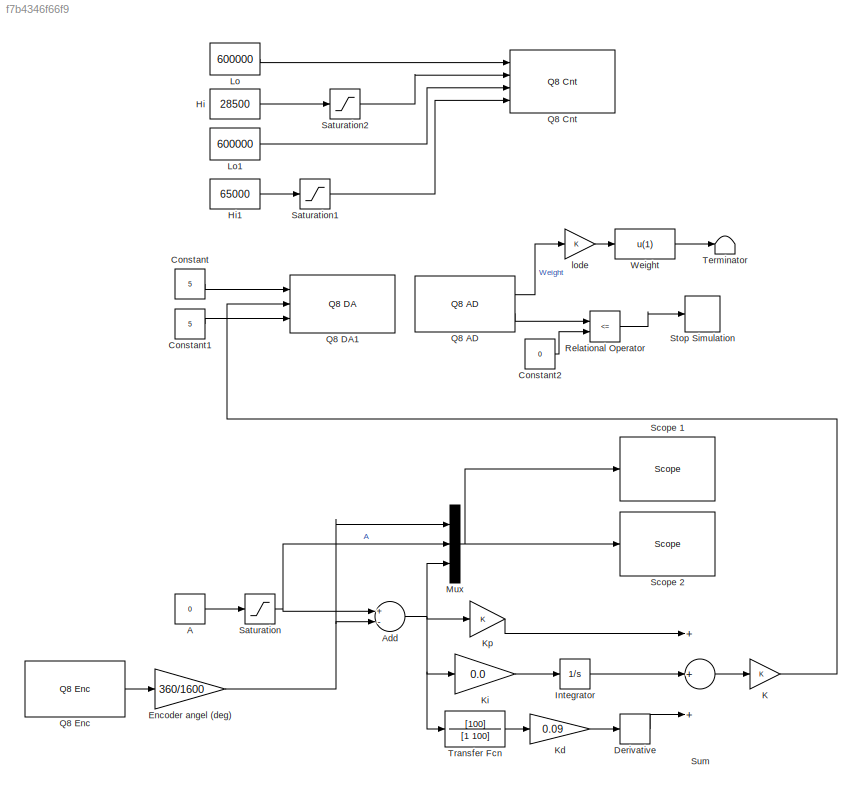
MODEL slx_f7b4346f66f9
KIND model
CONFIG AbsTol = auto
CONFIG FixedStep = 0.0001
CONFIG MaxStep = auto
CONFIG MinStep = auto
CONFIG RelTol = 1e-3
CONFIG SampleTimeConstraint = Unconstrained
CONFIG Solver = ode3
CONFIG SolverMode = Auto
CONFIG SolverName = ode3
CONFIG StartTime = 0.0
CONFIG StopTime = inf
BLOCK [Constant] A
  Value = 0
BLOCK [Sum] Add
  InputSameDT = off
  Inputs = +-
  OutDataTypeStr = Inherit: Inherit via internal rule
  Ports = [2, 1]
  SaturateOnIntegerOverflow = off
BLOCK [Constant] Constant
  Value = 5
BLOCK [Constant] Constant1
  Value = 5
BLOCK [Constant] Constant2
  Value = 0
BLOCK [Derivative] Derivative
BLOCK [Gain] Encoder angel (deg)
  Gain = 360/1600
  OutDataTypeStr = Inherit: Inherit via internal rule
  ParamDataTypeStr = Inherit: Inherit via internal rule
  SaturateOnIntegerOverflow = off
BLOCK [Constant] Hi
  Value = 28500
BLOCK [Constant] Hi1
  Value = 65000
BLOCK [Integrator] Integrator
  Ports = [1, 1]
BLOCK [Gain] K
  OutDataTypeStr = Inherit: Inherit via internal rule
  ParamDataTypeStr = Inherit: Inherit via internal rule
  SaturateOnIntegerOverflow = off
BLOCK [Gain] Kd
  Gain = 0.09
  OutDataTypeStr = Inherit: Inherit via internal rule
  ParamDataTypeStr = Inherit: Inherit via internal rule
  SaturateOnIntegerOverflow = off
BLOCK [Gain] Ki
  Gain = 0.0
  OutDataTypeStr = Inherit: Inherit via internal rule
  ParamDataTypeStr = Inherit: Inherit via internal rule
  SaturateOnIntegerOverflow = off
BLOCK [Gain] Kp
  OutDataTypeStr = Inherit: Inherit via internal rule
  ParamDataTypeStr = Inherit: Inherit via internal rule
  SaturateOnIntegerOverflow = off
BLOCK [Constant] Lo
  Value = 600000
BLOCK [Constant] Lo1
  Value = 600000
BLOCK [Mux] Mux
  DisplayOption = bar
  Inputs = 3
  Ports = [3, 1]
BLOCK [Reference] Q8 AD  REF=xpcquanserlib/A//D/Q8 AD
  Ports = [0, 2]
  SourceBlock = xpcquanserlib/A//D/Q8 AD
  SourceType = quanser_q8_ad
  channel = [1,5]
  sampleTime = -1
  slot = -1
BLOCK [Reference] Q8 Cnt  REF=xpcquanserlib/Counter/Q8 Cnt
  Ports = [4]
  SourceBlock = xpcquanserlib/Counter/Q8 Cnt
  SourceType = quanser_q8_cnt
  channel = [1,2]
  initHiCount = [0]
  initLoCount = [0]
  mode = [1]
  reset = [1]
  sampleTime = -1
  showArm = [0]
  slot = -1
BLOCK [Reference] Q8 DA1  REF=xpcquanserlib/D//A/Q8 DA
  Ports = [3]
  SourceBlock = xpcquanserlib/D//A/Q8 DA
  SourceType = quanser_q8_da
  channel = [5,3,2]
  initValue = [0]
  range = [-5]
  reset = [1]
  sampleTime = -1
  simul = off
  slot = -1
BLOCK [Reference] Q8 Enc  REF=xpcquanserlib/Incremental
Encoder/Q8 Enc
  Ports = [0, 1]
  SourceBlock = xpcquanserlib/Incremental\nEncoder/Q8 Enc
  SourceType = quanser_q8_enc
  channel = [1]
  indexPolarity = [0]
  initialCount = [0]
  mode = [0]
  prescale = [1]
  preserveCounts = [0]
  quadrature = [4]
  sampleTime = -1
  slot = -1
  synchronousIndex = [0]
BLOCK [RelationalOperator] Relational Operator
  InputSameDT = off
  Operator = <=
  OutDataTypeStr = boolean
  Ports = [2, 1]
BLOCK [Saturate] Saturation
  InputPortMap = u0
  LowerLimit = -270-48
  Ports = [1, 1]
  UpperLimit = 0
BLOCK [Saturate] Saturation1
  InputPortMap = u0
  LowerLimit = 33000
  Ports = [1, 1]
  UpperLimit = 65000
BLOCK [Saturate] Saturation2
  InputPortMap = u0
  LowerLimit = 20000
  Ports = [1, 1]
  UpperLimit = 30000
BLOCK [Reference] Scope 1  REF=slrtlib/Displays and
Logging/Scope 
  Ports = [1]
  SourceBlock = slrtlib/Displays and\nLogging/Scope
  SourceType = xpcscopeblock
  autorestart = off
  autostart = on
  dynamicfilemode = off
  filename = data.dat
  formatstr = '%15.6f'
  grid = on
  interleave = 1
  maxwritefilesize = 512*1024^2
  mode = Lazy
  noprepostsamples = 0
  nosamples = 1000
  scopeno = 1
  scopetype = Host
  triggerlevel = 1
  triggermode = Signal triggering
  triggersample = 0
  triggerscope = 1
  triggersignal = 2
  triggerslope = Either
  trigsignalfromport = off
  viewmode = Graphical redraw
  writesize = 512
  ylimits = [0,0]
BLOCK [Reference] Scope 2  REF=slrtlib/Displays and
Logging/Scope 
  Ports = [1]
  SourceBlock = slrtlib/Displays and\nLogging/Scope
  SourceType = xpcscopeblock
  autorestart = off
  autostart = on
  dynamicfilemode = off
  filename = data.dat
  formatstr = '%15.6f'
  grid = on
  interleave = 1
  maxwritefilesize = 512*1024^2
  mode = Lazy
  noprepostsamples = 0
  nosamples = 250
  scopeno = 2
  scopetype = Target
  triggerlevel = 1
  triggermode = FreeRun
  triggersample = 0
  triggerscope = 1
  triggersignal = 2
  triggerslope = Either
  trigsignalfromport = off
  viewmode = Graphical redraw
  writesize = 512
  ylimits = [0,180]
BLOCK [Stop] Stop Simulation
BLOCK [Sum] Sum
  InputSameDT = off
  Inputs = +++
  OutDataTypeStr = Inherit: Inherit via internal rule
  Ports = [3, 1]
  SaturateOnIntegerOverflow = off
BLOCK [Terminator] Terminator
BLOCK [TransferFcn] Transfer Fcn
  Denominator = [1 100]
  Numerator = [100]
BLOCK [Fcn] Weight
  Expr = u(1)
BLOCK [Gain] lode
  OutDataTypeStr = Inherit: Inherit via internal rule
  ParamDataTypeStr = Inherit: Inherit via internal rule
  SaturateOnIntegerOverflow = off
LINE A:1 -> Saturation:1
NET Add:1 -> Ki:1, Kp:1, Mux:3, Transfer Fcn:1
LINE Constant1:1 -> Q8 DA1:3
LINE Constant2:1 -> Relational Operator:2
LINE Constant:1 -> Q8 DA1:1
LINE Derivative:1 -> Sum:3
NET Encoder angel (deg):1 -> Add:2, Mux:1
LINE Hi1:1 -> Saturation1:1
LINE Hi:1 -> Saturation2:1
LINE Integrator:1 -> Sum:2
LINE K:1 -> Q8 DA1:2
LINE Kd:1 -> Derivative:1
LINE Ki:1 -> Integrator:1
LINE Kp:1 -> Sum:1
LINE Lo1:1 -> Q8 Cnt:3
LINE Lo:1 -> Q8 Cnt:1
NET Mux:1 -> Scope 1:1, Scope 2:1
LINE Q8 AD:1 -> lode:1
LINE Q8 AD:2 -> Relational Operator:1
LINE Q8 Enc:1 -> Encoder angel (deg):1
LINE Relational Operator:1 -> Stop Simulation:1
LINE Saturation1:1 -> Q8 Cnt:4
LINE Saturation2:1 -> Q8 Cnt:2
NET Saturation:1 -> Add:1, Mux:2
LINE Sum:1 -> K:1
LINE Transfer Fcn:1 -> Kd:1
LINE Weight:1 -> Terminator:1
LINE lode:1 -> Weight:1
note: NET lines group one-source signal fan-out (src -> all destinations, sorted); 1:1 wires keep LINE
